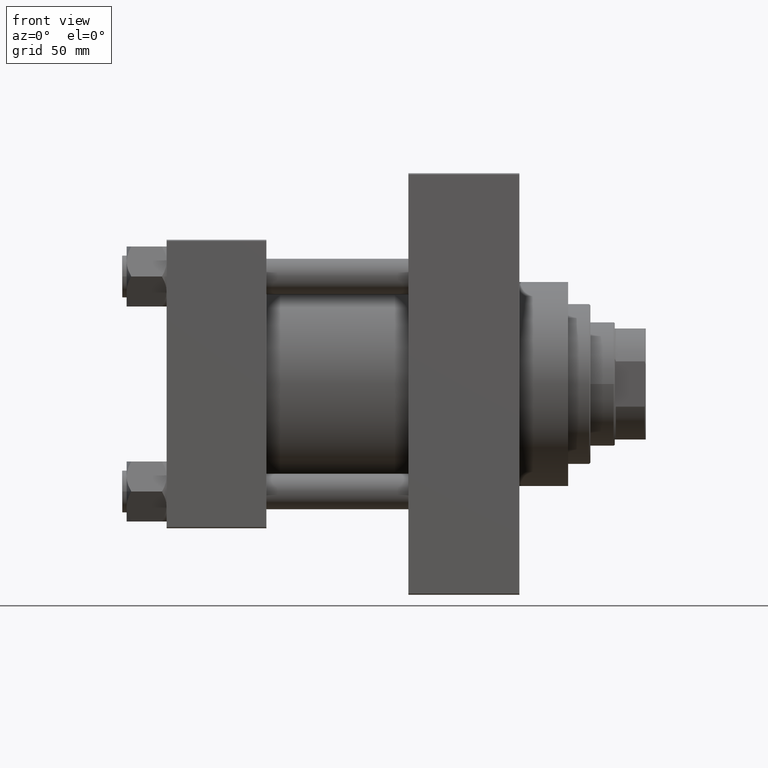
[diagram: clean part render]
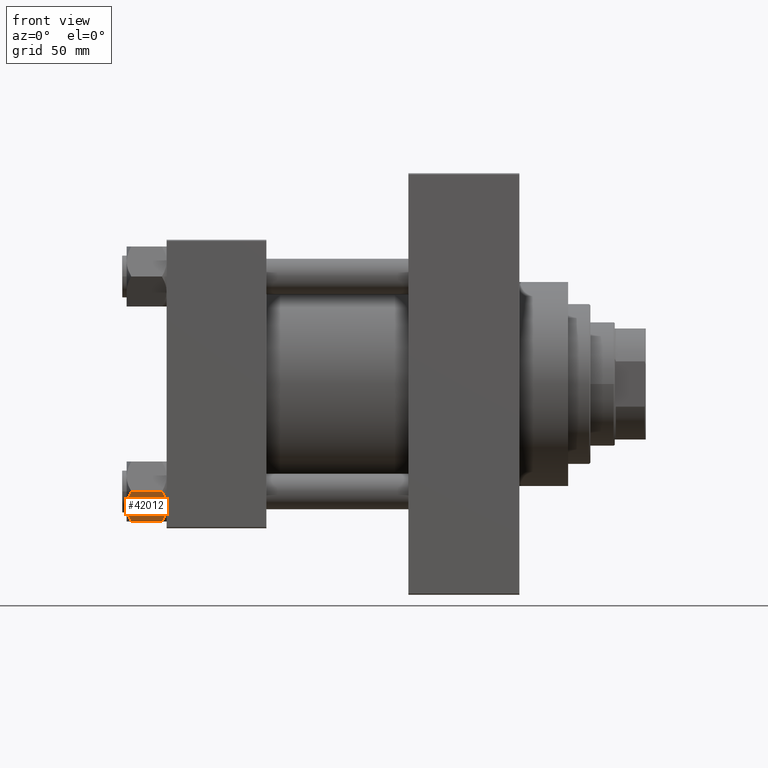
[diagram: same view with one face highlighted and labeled with its STEP entity id]
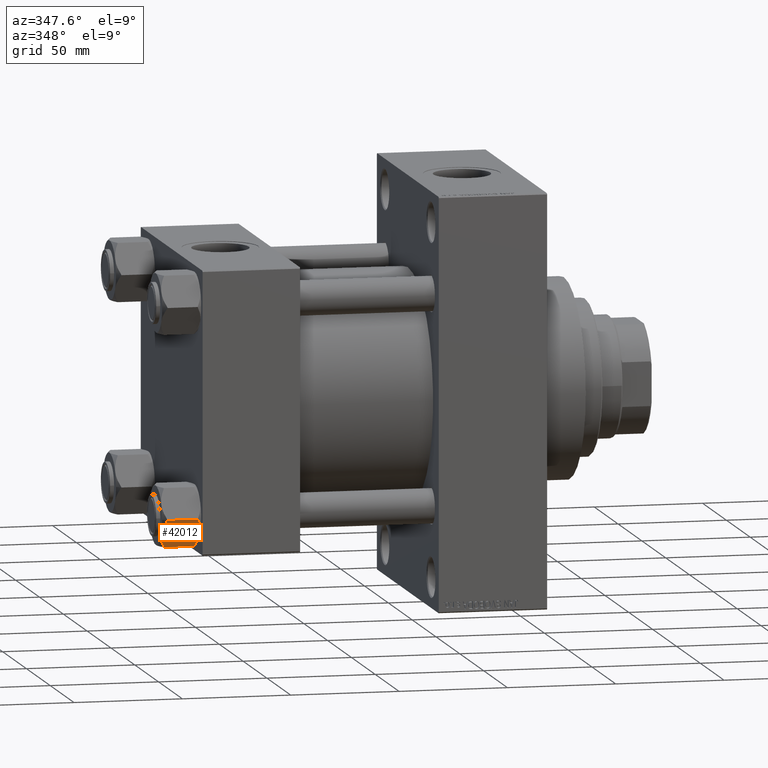
[diagram: same view with one face highlighted and labeled with its STEP entity id]
A machine part, front view. The second image highlights one B-rep face of the part: STEP entity #42012.
A second angle (auxiliary view) of the same face is appended — the face is thin or edge-on in the first view.
In plain terms, the highlighted planar face has unit normal (0, 0.866, 0.5).
Its self-contained STEP definition (entity closure, byte-faithful):
#351 = CARTESIAN_POINT ( 'NONE',  ( 15.22736220980736022, -0.6800686015852294153, -1.706311779141445495 ) ) ;
#761 = CARTESIAN_POINT ( 'NONE',  ( 13.36540581434587516, -3.905071680002325962, -17.61639331488793303 ) ) ;
#1102 = VERTEX_POINT ( 'NONE', #22595 ) ;
#1502 = FACE_OUTER_BOUND ( 'NONE', #18926, .T. ) ;
#1504 = B_SPLINE_CURVE_WITH_KNOTS ( 'NONE', 3,
 ( #37476, #4375, #19118, #761, #15495, #41337, #2175, #42749 ),
 .UNSPECIFIED., .F., .F.,
 ( 4, 2, 2, 4 ),
 ( 4.472842641901889415E-07, 0.003945636373369311792, 0.005918230917921871344, 0.007890825462474430896 ),
 .UNSPECIFIED. ) ;
#1531 = DIRECTION ( 'NONE',  ( -0.5000000000000002220, -0.8660254037844384856, 0.000000000000000000 ) ) ;
#1765 = CARTESIAN_POINT ( 'NONE',  ( 15.62000000000000455, -1.379485931020374819E-15, -16.00000000000000000 ) ) ;
#1997 = CARTESIAN_POINT ( 'NONE',  ( 7.810000000000002274, -13.52731680711293372, -1.999999999999998224 ) ) ;
#2175 = CARTESIAN_POINT ( 'NONE',  ( 12.04818928091285279, -6.186557640478066666, -17.99999999999999645 ) ) ;
#2872 = ORIENTED_EDGE ( 'NONE', *, *, #30703, .F. ) ;
#3854 = VERTEX_POINT ( 'NONE', #10845 ) ;
#4375 = CARTESIAN_POINT ( 'NONE',  ( 14.92760668674625535, -1.199260397376455067, -16.58801072835992585 ) ) ;
#5173 = CARTESIAN_POINT ( 'NONE',  ( 14.92394044919338292, -1.205610507090636219, -1.434462921875003349 ) ) ;
#5272 = CARTESIAN_POINT ( 'NONE',  ( 7.903528262322674358, -13.36532110482643176, -2.000000000000000000 ) ) ;
#5747 = CARTESIAN_POINT ( 'NONE',  ( 8.502393313253756801, -12.32805640973649197, -1.411989271640069044 ) ) ;
#6291 = AXIS2_PLACEMENT_3D ( 'NONE', #27358, #30990, #23731 ) ;
#7667 = CARTESIAN_POINT ( 'NONE',  ( 11.71500000000000341, -6.763658403556471299, 0.000000000000000000 ) ) ;
#8310 = CARTESIAN_POINT ( 'NONE',  ( 9.439480280627259745, -10.70497417113492666, -17.26828031537187869 ) ) ;
#8558 = CARTESIAN_POINT ( 'NONE',  ( 13.99051971937274352, -2.822342635978011938, -0.7317196846281139866 ) ) ;
#10845 = CARTESIAN_POINT ( 'NONE',  ( 15.52647173767732980, -0.1619957022865074481, -16.00000000000000000 ) ) ;
#11053 = EDGE_CURVE ( 'NONE', #3854, #1102, #1504, .T. ) ;
#11837 = EDGE_CURVE ( 'NONE', #45490, #31118, #31083, .T. ) ;
#12416 = CARTESIAN_POINT ( 'NONE',  ( 11.71500000000000341, -6.763658403556471299, 0.000000000000000000 ) ) ;
#12702 = CARTESIAN_POINT ( 'NONE',  ( 15.62000000000000455, -1.379485931020374819E-15, -18.00000000000000000 ) ) ;
#13224 = CARTESIAN_POINT ( 'NONE',  ( 10.06459418565412456, -9.622245127110611307, -0.3836066851120584209 ) ) ;
#13462 = CARTESIAN_POINT ( 'NONE',  ( 9.114548888011784200, -11.26777185211904353, -0.9142282604026938930 ) ) ;
#15088 = CARTESIAN_POINT ( 'NONE',  ( 15.52647173767732980, -0.1619957022865074481, -2.000000000000000000 ) ) ;
#15371 = EDGE_CURVE ( 'NONE', #45490, #3854, #34389, .T. ) ;
#15495 = CARTESIAN_POINT ( 'NONE',  ( 13.04337073483127973, -4.462852799541088267, -17.75691532989870325 ) ) ;
#15844 = CARTESIAN_POINT ( 'NONE',  ( 7.810000000000002274, -13.52731680711293372, -18.00000000000000000 ) ) ;
#16364 = ORIENTED_EDGE ( 'NONE', *, *, #26951, .F. ) ;
#17089 = CARTESIAN_POINT ( 'NONE',  ( 11.71500000000000341, -6.763658403556471299, 0.000000000000000000 ) ) ;
#17858 = ORIENTED_EDGE ( 'NONE', *, *, #41754, .F. ) ;
#18926 = EDGE_LOOP ( 'NONE', ( #20301, #21757, #17858, #16364, #20444, #24564, #40794, #2872, #47132, #23944 ) ) ;
#18951 = CARTESIAN_POINT ( 'NONE',  ( 12.37702203890362540, -5.617002596445055396, 1.097754699641572845E-15 ) ) ;
#19118 = CARTESIAN_POINT ( 'NONE',  ( 14.31545111198821729, -2.259544954993898624, -17.08577173959729834 ) ) ;
#19594 = CARTESIAN_POINT ( 'NONE',  ( 15.62000000000000455, -1.379485931020374819E-15, -16.00000000000000000 ) ) ;
#19752 = VECTOR ( 'NONE', #34452, 1000.000000000000000 ) ;
#20301 = ORIENTED_EDGE ( 'NONE', *, *, #15371, .F. ) ;
#20444 = ORIENTED_EDGE ( 'NONE', *, *, #34913, .F. ) ;
#20483 = CARTESIAN_POINT ( 'NONE',  ( 11.04378428799594936, -7.926238119586006547, -0.05089381635301404999 ) ) ;
#20632 = DIRECTION ( 'NONE',  ( 0.5000000000000002220, 0.8660254037844384856, -0.000000000000000000 ) ) ;
#21507 = VERTEX_POINT ( 'NONE', #32957 ) ;
#21735 = VECTOR ( 'NONE', #20632, 1000.000000000000114 ) ;
#21757 = ORIENTED_EDGE ( 'NONE', *, *, #11837, .T. ) ;
#22292 = LINE ( 'NONE', #26629, #38670 ) ;
#22595 = CARTESIAN_POINT ( 'NONE',  ( 11.71500000000000341, -6.763658403556471299, -18.00000000000000000 ) ) ;
#22603 = B_SPLINE_CURVE_WITH_KNOTS ( 'NONE', 3,
 ( #45730, #34646, #27393, #8310, #37313, #30070, #44778, #26445 ),
 .UNSPECIFIED., .F., .F.,
 ( 4, 2, 2, 4 ),
 ( 0.007890825462474430896, 0.01181022244528554324, 0.01376992093669110115, 0.01572961942809665906 ),
 .UNSPECIFIED. ) ;
#23731 = DIRECTION ( 'NONE',  ( -0.5000000000000002220, -0.8660254037844384856, 0.000000000000000000 ) ) ;
#23944 = ORIENTED_EDGE ( 'NONE', *, *, #11053, .F. ) ;
#24120 = CARTESIAN_POINT ( 'NONE',  ( 10.38662926516871998, -9.064464007571853443, -0.2430846701012968625 ) ) ;
#24265 = CARTESIAN_POINT ( 'NONE',  ( 15.62000000000000455, -1.379485931020374819E-15, -1.999999999999998224 ) ) ;
#24554 = EDGE_CURVE ( 'NONE', #27934, #25012, #41699, .T. ) ;
#24564 = ORIENTED_EDGE ( 'NONE', *, *, #40949, .F. ) ;
#24596 = VECTOR ( 'NONE', #1531, 1000.000000000000114 ) ;
#25012 = VERTEX_POINT ( 'NONE', #1997 ) ;
#25583 = EDGE_CURVE ( 'NONE', #1102, #21507, #22603, .T. ) ;
#26445 = CARTESIAN_POINT ( 'NONE',  ( 7.903528262322674358, -13.36532110482643176, -16.00000000000000000 ) ) ;
#26629 = CARTESIAN_POINT ( 'NONE',  ( 15.62000000000000455, -1.379485931020374819E-15, -1.999999999999998224 ) ) ;
#26634 = CARTESIAN_POINT ( 'NONE',  ( 7.810000000000002274, -13.52731680711293372, -16.00000000000000000 ) ) ;
#26951 = EDGE_CURVE ( 'NONE', #47126, #36576, #43893, .T. ) ;
#26983 = DIRECTION ( 'NONE',  ( -0.000000000000000000, -0.000000000000000000, 1.000000000000000000 ) ) ;
#27358 = CARTESIAN_POINT ( 'NONE',  ( 15.62000000000000455, -1.379485931020374819E-15, -18.00000000000000000 ) ) ;
#27393 = CARTESIAN_POINT ( 'NONE',  ( 10.40215497533437450, -9.037572688741349225, -17.80281335400754372 ) ) ;
#27629 = CARTESIAN_POINT ( 'NONE',  ( 15.52647173767732980, -0.1619957022865074481, -2.000000000000000000 ) ) ;
#27934 = VERTEX_POINT ( 'NONE', #26634 ) ;
#28407 = VECTOR ( 'NONE', #36768, 1000.000000000000114 ) ;
#29292 = CARTESIAN_POINT ( 'NONE',  ( 15.62000000000000455, -1.379485931020374819E-15, -16.00000000000000000 ) ) ;
#30070 = CARTESIAN_POINT ( 'NONE',  ( 8.506059550806615022, -12.32170630002230638, -16.56553707812499709 ) ) ;
#30703 = EDGE_CURVE ( 'NONE', #21507, #27934, #40876, .T. ) ;
#30990 = DIRECTION ( 'NONE',  ( -0.8660254037844385966, 0.5000000000000003331, 0.000000000000000000 ) ) ;
#31083 = LINE ( 'NONE', #12702, #47657 ) ;
#31118 = VERTEX_POINT ( 'NONE', #47618 ) ;
#32426 = VERTEX_POINT ( 'NONE', #46202 ) ;
#32957 = CARTESIAN_POINT ( 'NONE',  ( 7.903528262322674358, -13.36532110482643176, -16.00000000000000000 ) ) ;
#34389 = LINE ( 'NONE', #1765, #24596 ) ;
#34409 = CARTESIAN_POINT ( 'NONE',  ( 14.30591678195076355, -2.276058899034900662, -0.9473872146228133895 ) ) ;
#34452 = DIRECTION ( 'NONE',  ( -0.000000000000000000, -0.000000000000000000, 1.000000000000000000 ) ) ;
#34646 = CARTESIAN_POINT ( 'NONE',  ( 11.05297796109637964, -7.910314210667883650, -18.00000000000000000 ) ) ;
#34913 = EDGE_CURVE ( 'NONE', #32426, #47126, #39091, .T. ) ;
#36576 = VERTEX_POINT ( 'NONE', #27629 ) ;
#36768 = DIRECTION ( 'NONE',  ( -0.5000000000000002220, -0.8660254037844384856, 0.000000000000000000 ) ) ;
#37269 = DIRECTION ( 'NONE',  ( 0.5000000000000002220, 0.8660254037844384856, -0.000000000000000000 ) ) ;
#37313 = CARTESIAN_POINT ( 'NONE',  ( 9.124083218049241495, -11.25125790807804016, -17.05261278537718539 ) ) ;
#37318 = CARTESIAN_POINT ( 'NONE',  ( 13.02784502466562699, -4.489744118371590709, -0.1971866459924545845 ) ) ;
#37476 = CARTESIAN_POINT ( 'NONE',  ( 15.52647173767732980, -0.1619957022865074481, -16.00000000000000000 ) ) ;
#38670 = VECTOR ( 'NONE', #37269, 1000.000000000000114 ) ;
#39091 = B_SPLINE_CURVE_WITH_KNOTS ( 'NONE', 3,
 ( #5272, #5747, #13462, #13224, #24120, #20483, #46071, #17089 ),
 .UNSPECIFIED., .F., .F.,
 ( 4, 2, 2, 4 ),
 ( 4.472842641876105202E-07, 0.003945636373369308322, 0.005918230917921867007, 0.007890825462474425692 ),
 .UNSPECIFIED. ) ;
#40794 = ORIENTED_EDGE ( 'NONE', *, *, #24554, .F. ) ;
#40876 = LINE ( 'NONE', #29292, #28407 ) ;
#40949 = EDGE_CURVE ( 'NONE', #25012, #32426, #22292, .T. ) ;
#41337 = CARTESIAN_POINT ( 'NONE',  ( 12.38621571200405569, -5.601078687526932498, -17.94910618364698252 ) ) ;
#41699 = LINE ( 'NONE', #15844, #19752 ) ;
#41754 = EDGE_CURVE ( 'NONE', #36576, #31118, #41900, .T. ) ;
#41900 = LINE ( 'NONE', #24265, #21735 ) ;
#42012 = ADVANCED_FACE ( 'NONE', ( #1502 ), #45454, .F. ) ;
#42749 = CARTESIAN_POINT ( 'NONE',  ( 11.71500000000000341, -6.763658403556471299, -18.00000000000000000 ) ) ;
#43893 = B_SPLINE_CURVE_WITH_KNOTS ( 'NONE', 3,
 ( #12416, #18951, #37318, #8558, #34409, #5173, #351, #15088 ),
 .UNSPECIFIED., .F., .F.,
 ( 4, 2, 2, 4 ),
 ( 0.007890825462474425692, 0.01181022244528553977, 0.01376992093669109768, 0.01572961942809665559 ),
 .UNSPECIFIED. ) ;
#44778 = CARTESIAN_POINT ( 'NONE',  ( 8.202637790192644829, -12.84724820552770908, -16.29368822085855228 ) ) ;
#45454 = PLANE ( 'NONE',  #6291 ) ;
#45490 = VERTEX_POINT ( 'NONE', #19594 ) ;
#45730 = CARTESIAN_POINT ( 'NONE',  ( 11.71500000000000341, -6.763658403556471299, -18.00000000000000000 ) ) ;
#46071 = CARTESIAN_POINT ( 'NONE',  ( 11.38181071908714515, -7.340759166634874155, 7.741881137904304113E-16 ) ) ;
#46202 = CARTESIAN_POINT ( 'NONE',  ( 7.903528262322674358, -13.36532110482643176, -2.000000000000000000 ) ) ;
#47126 = VERTEX_POINT ( 'NONE', #7667 ) ;
#47132 = ORIENTED_EDGE ( 'NONE', *, *, #25583, .F. ) ;
#47618 = CARTESIAN_POINT ( 'NONE',  ( 15.62000000000000455, -1.379485931020374819E-15, -1.999999999999998224 ) ) ;
#47657 = VECTOR ( 'NONE', #26983, 1000.000000000000000 ) ;